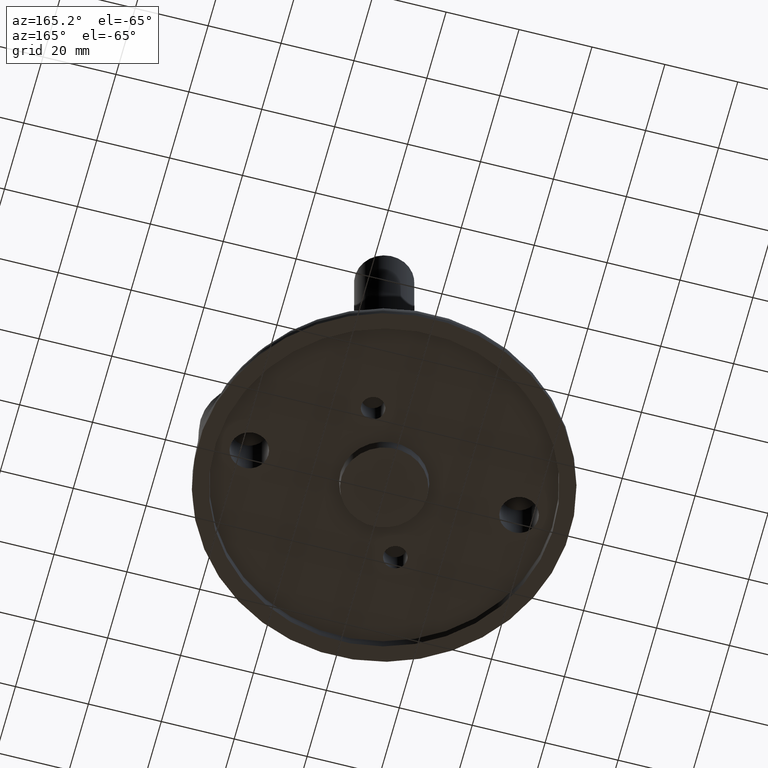
[diagram: clean part render]
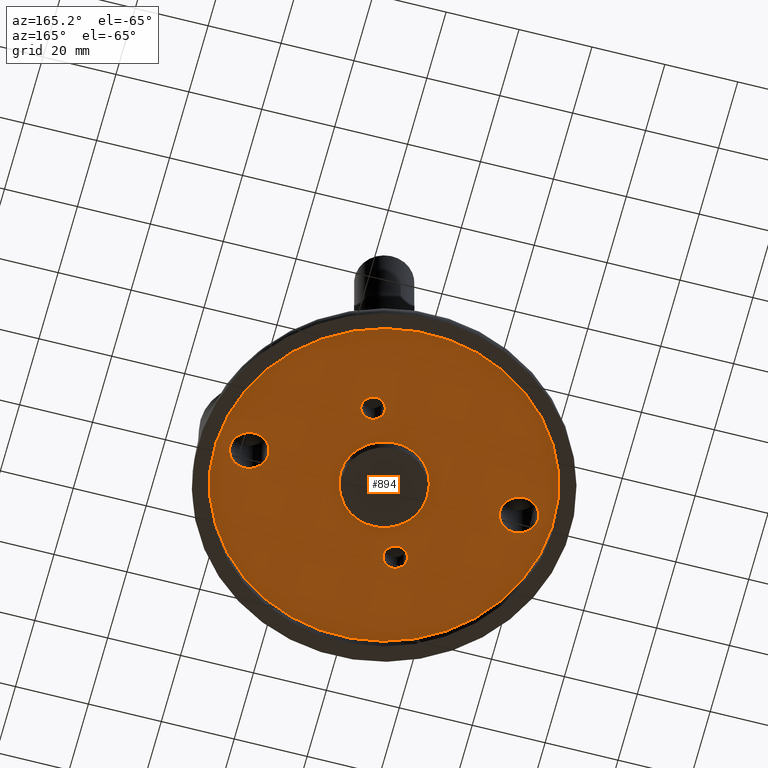
[diagram: same view with one face highlighted and labeled with its STEP entity id]
A machine part, auxiliary view. The second image highlights one B-rep face of the part: STEP entity #894.
In plain terms, the highlighted planar face has unit normal (0, 0, 1).
Its self-contained STEP definition (entity closure, byte-faithful):
#139=FACE_BOUND('',#207,.T.);
#140=FACE_BOUND('',#208,.T.);
#141=FACE_BOUND('',#209,.T.);
#142=FACE_BOUND('',#210,.T.);
#143=FACE_BOUND('',#211,.T.);
#146=FACE_OUTER_BOUND('',#206,.T.);
#206=EDGE_LOOP('',(#563));
#207=EDGE_LOOP('',(#564));
#208=EDGE_LOOP('',(#565));
#209=EDGE_LOOP('',(#566));
#210=EDGE_LOOP('',(#567));
#211=EDGE_LOOP('',(#568));
#273=CIRCLE('',#979,46.3985037042238);
#274=CIRCLE('',#980,5.25);
#275=CIRCLE('',#981,3.25);
#276=CIRCLE('',#982,3.25);
#277=CIRCLE('',#983,5.25);
#278=CIRCLE('',#984,11.9949682465201);
#348=VERTEX_POINT('',#1358);
#349=VERTEX_POINT('',#1360);
#350=VERTEX_POINT('',#1362);
#351=VERTEX_POINT('',#1364);
#352=VERTEX_POINT('',#1366);
#353=VERTEX_POINT('',#1368);
#431=EDGE_CURVE('',#348,#348,#273,.T.);
#432=EDGE_CURVE('',#349,#349,#274,.T.);
#433=EDGE_CURVE('',#350,#350,#275,.T.);
#434=EDGE_CURVE('',#351,#351,#276,.T.);
#435=EDGE_CURVE('',#352,#352,#277,.T.);
#436=EDGE_CURVE('',#353,#353,#278,.T.);
#563=ORIENTED_EDGE('',*,*,#431,.T.);
#564=ORIENTED_EDGE('',*,*,#432,.F.);
#565=ORIENTED_EDGE('',*,*,#433,.T.);
#566=ORIENTED_EDGE('',*,*,#434,.T.);
#567=ORIENTED_EDGE('',*,*,#435,.F.);
#568=ORIENTED_EDGE('',*,*,#436,.F.);
#827=PLANE('',#978);
#894=ADVANCED_FACE('',(#146,#139,#140,#141,#142,#143),#827,.F.);
#978=AXIS2_PLACEMENT_3D('',#1357,#1098,#1099);
#979=AXIS2_PLACEMENT_3D('',#1359,#1100,#1101);
#980=AXIS2_PLACEMENT_3D('',#1361,#1102,#1103);
#981=AXIS2_PLACEMENT_3D('',#1363,#1104,#1105);
#982=AXIS2_PLACEMENT_3D('',#1365,#1106,#1107);
#983=AXIS2_PLACEMENT_3D('',#1367,#1108,#1109);
#984=AXIS2_PLACEMENT_3D('',#1369,#1110,#1111);
#1098=DIRECTION('center_axis',(0.,0.,1.));
#1099=DIRECTION('ref_axis',(0.,-1.,0.));
#1100=DIRECTION('center_axis',(0.,0.,-1.));
#1101=DIRECTION('ref_axis',(0.,1.,0.));
#1102=DIRECTION('center_axis',(0.,0.,-1.));
#1103=DIRECTION('ref_axis',(0.,-1.,0.));
#1104=DIRECTION('center_axis',(0.,0.,1.));
#1105=DIRECTION('ref_axis',(0.,-1.,0.));
#1106=DIRECTION('center_axis',(0.,0.,1.));
#1107=DIRECTION('ref_axis',(0.,-1.,0.));
#1108=DIRECTION('center_axis',(0.,0.,-1.));
#1109=DIRECTION('ref_axis',(0.,-1.,0.));
#1110=DIRECTION('center_axis',(0.,0.,-1.));
#1111=DIRECTION('ref_axis',(0.,1.,0.));
#1357=CARTESIAN_POINT('Origin',(-51.0383540746461,51.0383540746462,3.00000000000004));
#1358=CARTESIAN_POINT('',(-26.9625683851517,-37.760310539863,3.00000000000004));
#1359=CARTESIAN_POINT('Origin',(0.,7.02872E-15,3.00000000000004));
#1360=CARTESIAN_POINT('',(42.25,-6.42939569552361E-16,3.00000000000004));
#1361=CARTESIAN_POINT('Origin',(37.,3.51436E-15,3.00000000000004));
#1362=CARTESIAN_POINT('',(5.169035512032,20.3253497152484,3.));
#1363=CARTESIAN_POINT('Origin',(8.419035512032,20.3253497152484,3.));
#1364=CARTESIAN_POINT('',(-11.669035512032,-20.3253497152482,3.00000000000009));
#1365=CARTESIAN_POINT('Origin',(-8.419035512032,-20.3253497152482,3.00000000000009));
#1366=CARTESIAN_POINT('',(-31.75,-6.42939569552361E-16,3.00000000000004));
#1367=CARTESIAN_POINT('Origin',(-37.,3.51436E-15,3.00000000000004));
#1368=CARTESIAN_POINT('',(-6.97037890766511,9.76181751102749,3.00000000000004));
#1369=CARTESIAN_POINT('Origin',(0.,7.02872E-15,3.00000000000004));